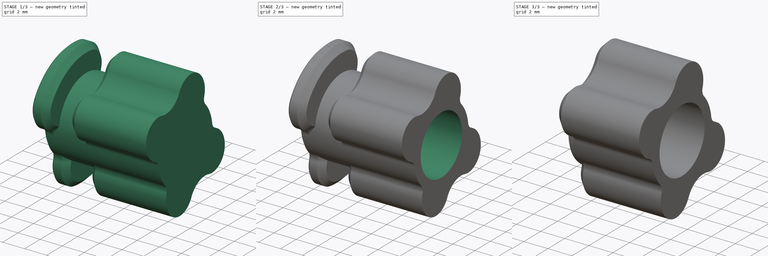
[diagram: build sequence overview — one tinted view per stage of 3, left to right]
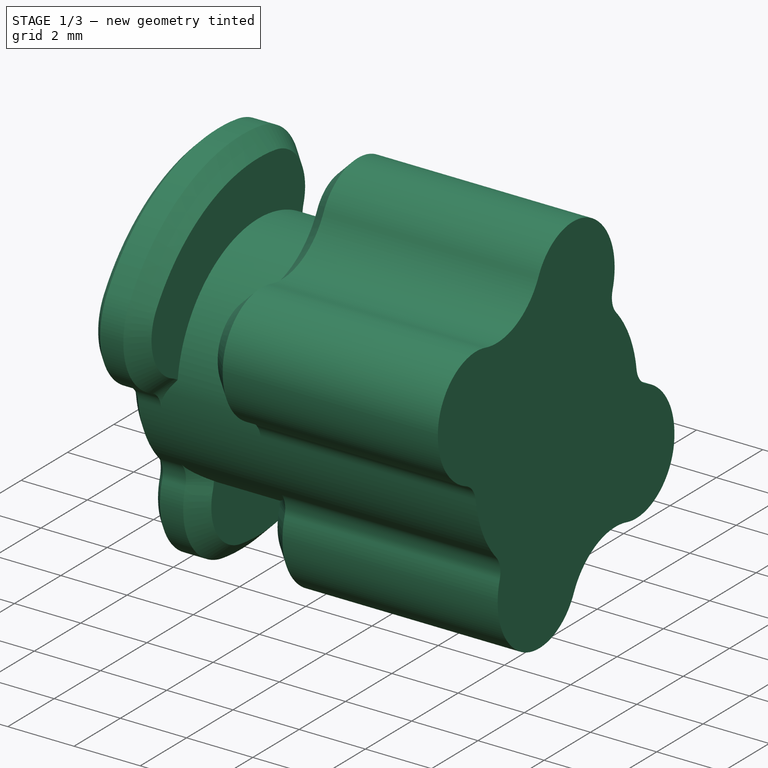
[diagram: stage 1 of 3 — iso view after this stage's code; geometry added in this stage tinted green]
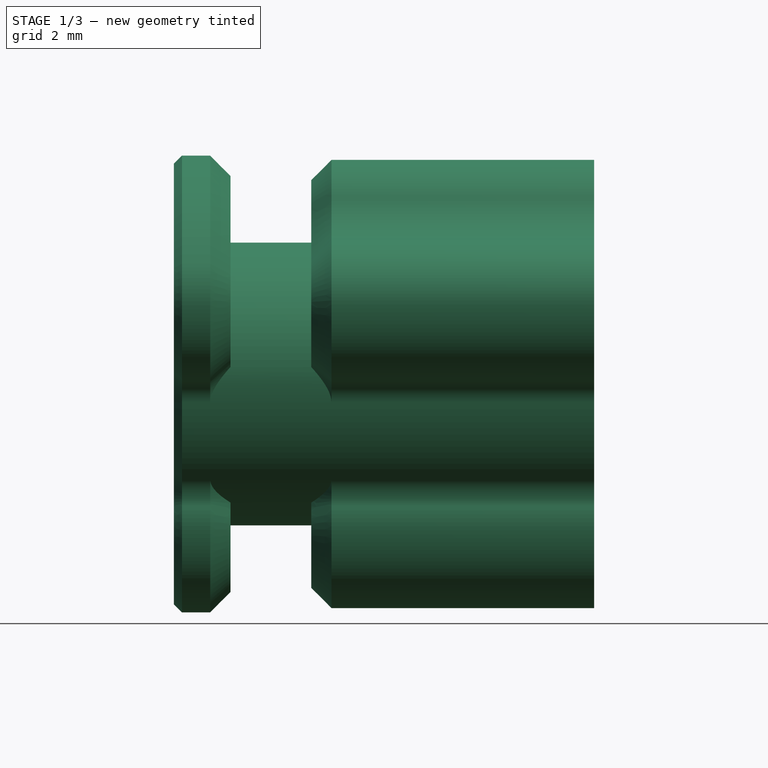
[diagram: stage 1 of 3 — front view after this stage's code; geometry added in this stage tinted green]
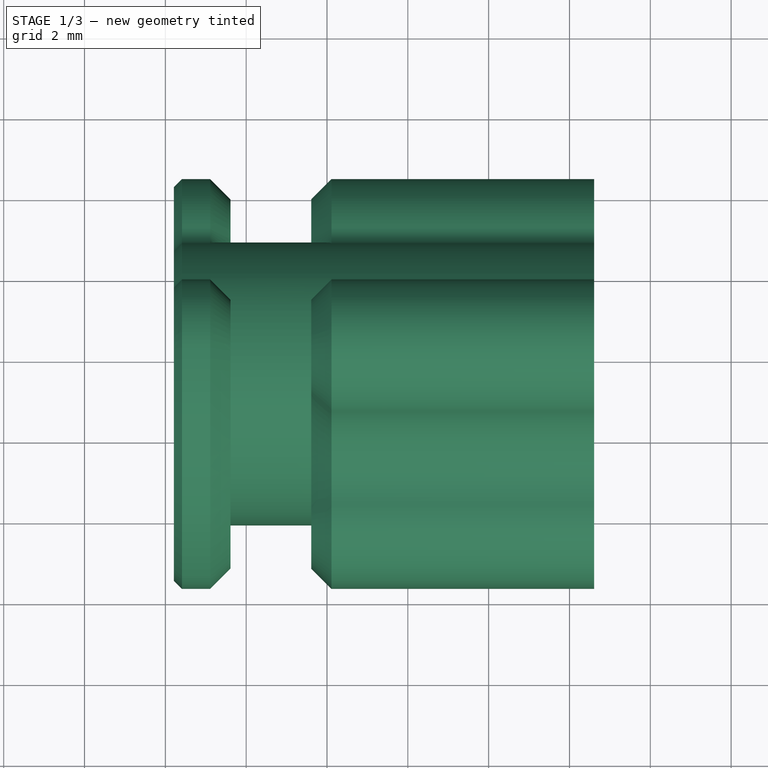
[diagram: stage 1 of 3 — top view after this stage's code; geometry added in this stage tinted green]
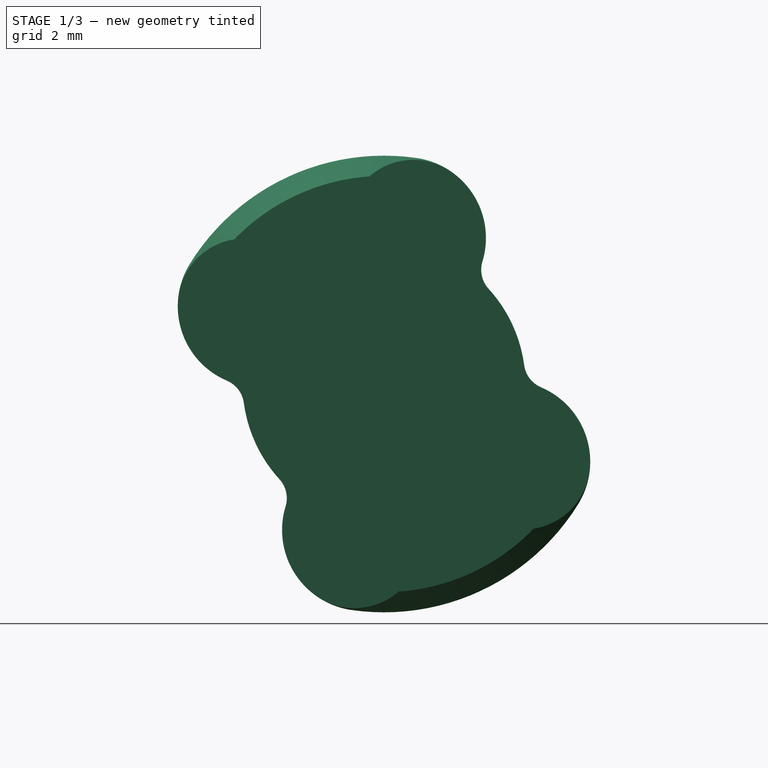
[diagram: stage 1 of 3 — right view after this stage's code; geometry added in this stage tinted green]
FCSTD DOCUMENT  (FreeCAD 0.18R)
Label: pillar-base
License: All rights reserved
LicenseURL: http://en.wikipedia.org/wiki/All_rights_reserved
objects: Part::MultiCommon×2, Sketcher::SketchObject×2, Part::Extrusion×2, Part::Feature×1, Part::Box×1, Part::Cut×1
note: 9 computed .brp shape members not serialized (recipe doc carries the construction recipe); baked Part::Feature solids carry a one-line shape summary decoded from their .brp

FEATURE [Part::Feature] Part__Feature  label="Left"
  shape: bbox 16.63 x 51.54 x 37.89 mm, 132 faces (baked)
FEATURE [Part::Box] Box  label="Cube"
  AttacherType = Attacher::AttachEngine3D
  Height = 50
  Length = 100
  Placement = pos=(-99.39,10,0) rot=(0,0,1;0rad)
  Width = 50
FEATURE [Part::MultiCommon] Common
  Shapes = -> [Part__Feature,Box]
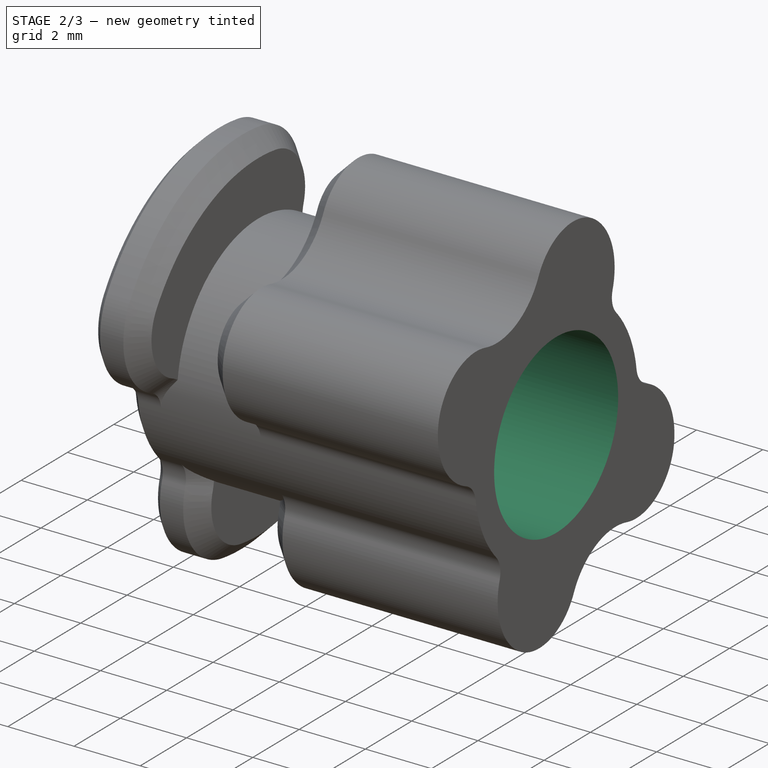
[diagram: stage 2 of 3 — iso view after this stage's code; geometry added in this stage tinted green]
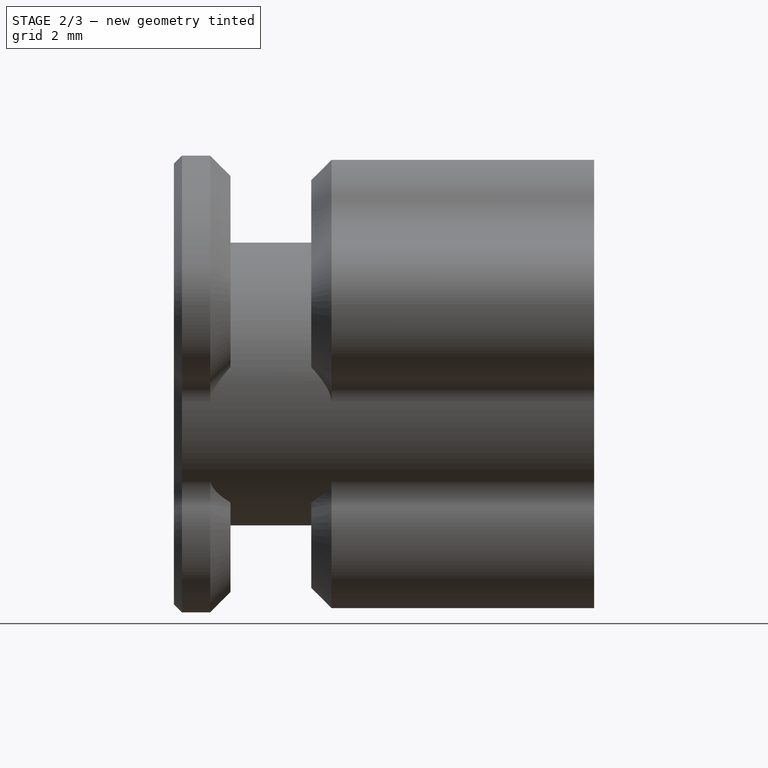
[diagram: stage 2 of 3 — front view after this stage's code; geometry added in this stage tinted green]
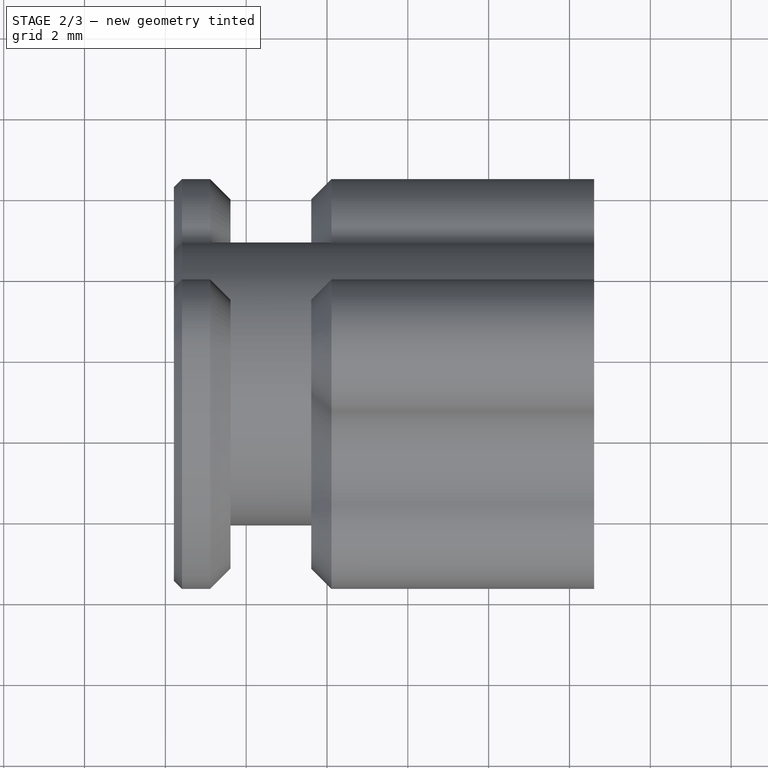
[diagram: stage 2 of 3 — top view after this stage's code; geometry added in this stage tinted green]
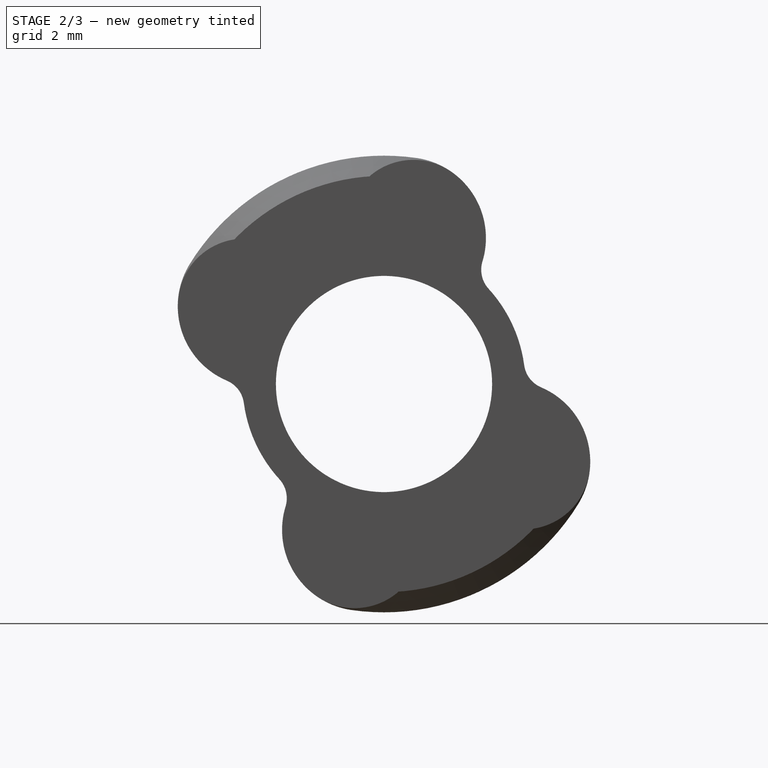
[diagram: stage 2 of 3 — right view after this stage's code; geometry added in this stage tinted green]
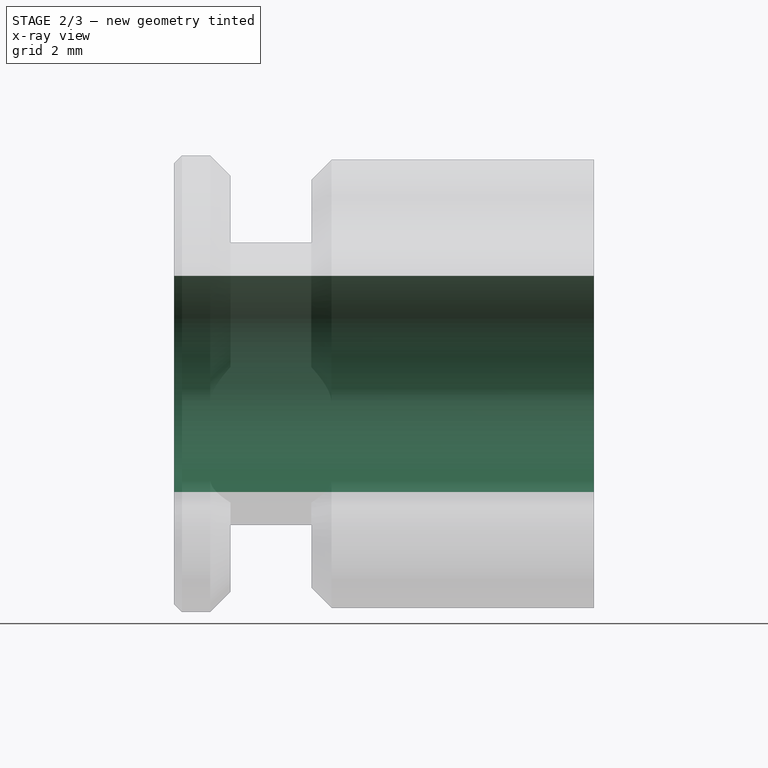
[diagram: stage 2 of 3 — x-ray composite at the front view; earlier geometry ghosted, this stage's added geometry solid]
FEATURE [Sketcher::SketchObject] Sketch
  ExternalGeometry = -> [Common]
  MapMode = 5
  Placement = pos=(0.61,0,0) rot=(0.57735,0.57735,0.57735;2.0944rad)
  Support = -> [Common]
  sketch-geometry (5):
    g0: Circle CenterX=27.3599 CenterY=15 CenterZ=0 NormalX=0 NormalY=0 NormalZ=1 AngleXU=0 Radius=2.675
    g1: LineSegment [constr] StartX=27.3599 StartY=15 StartZ=0 EndX=24.7089 EndY=14.6423 EndZ=0
    g2: LineSegment [constr] StartX=24.7089 StartY=14.6423 StartZ=0 EndX=23.8913 EndY=14.532 EndZ=0
    g3: LineSegment [constr] StartX=27.3599 StartY=15 StartZ=0 EndX=30.0109 EndY=15.3577 EndZ=0
    g4: Circle [constr] CenterX=27.3599 CenterY=15 CenterZ=0 NormalX=0 NormalY=0 NormalZ=1 AngleXU=0 Radius=1
  constraints (13):
    c: Coincident(g0,g-3)
    c: Coincident(g1,g0)
    c: PointOnObject(g1,g0)
    c: Coincident(g2,g1)
    c: Coincident(g2,g-3)
    c: Parallel(g2,g1)
    c: Coincident(g3,g0)
    c: PointOnObject(g3,g0)
    c: Parallel(g3,g1)
    c: Distance(g2) = 0.825
    c: Coincident(g4,g0)
    c: Radius(g4) = 1
    c: Radius(g0) = 2.675
FEATURE [Part::Extrusion] Extrude
  Base = -> Sketch
  Dir = (1,0,0)
  DirMode = 2
  FaceMakerClass = Part::FaceMakerBullseye
  LengthFwd = -50
  LengthRev = 0
  Solid = true
  Symmetric = false
FEATURE [Part::Cut] Cut
  Base = -> Common
  Tool = -> Extrude
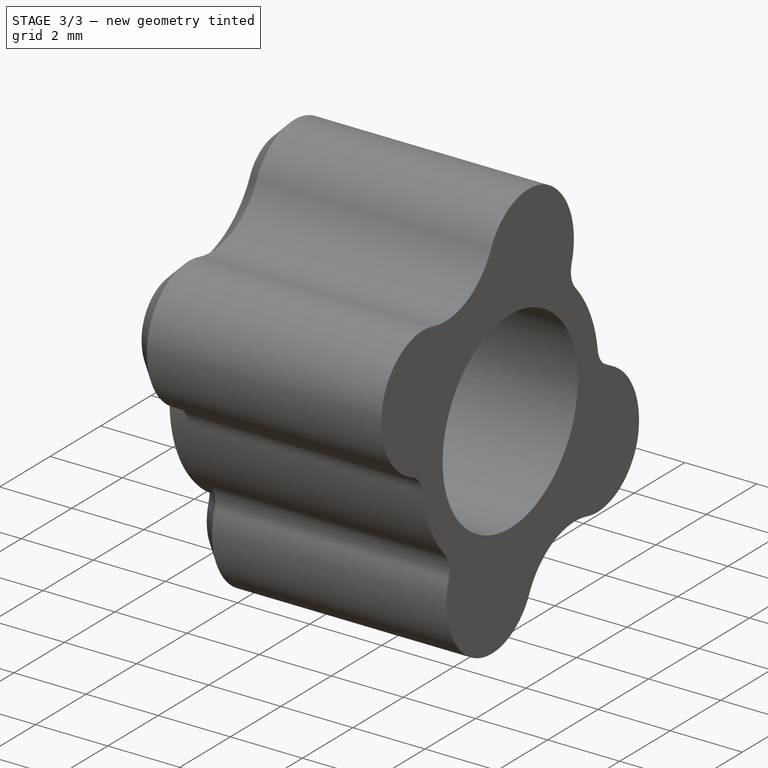
[diagram: stage 3 of 3 — iso view after this stage's code; geometry added in this stage tinted green]
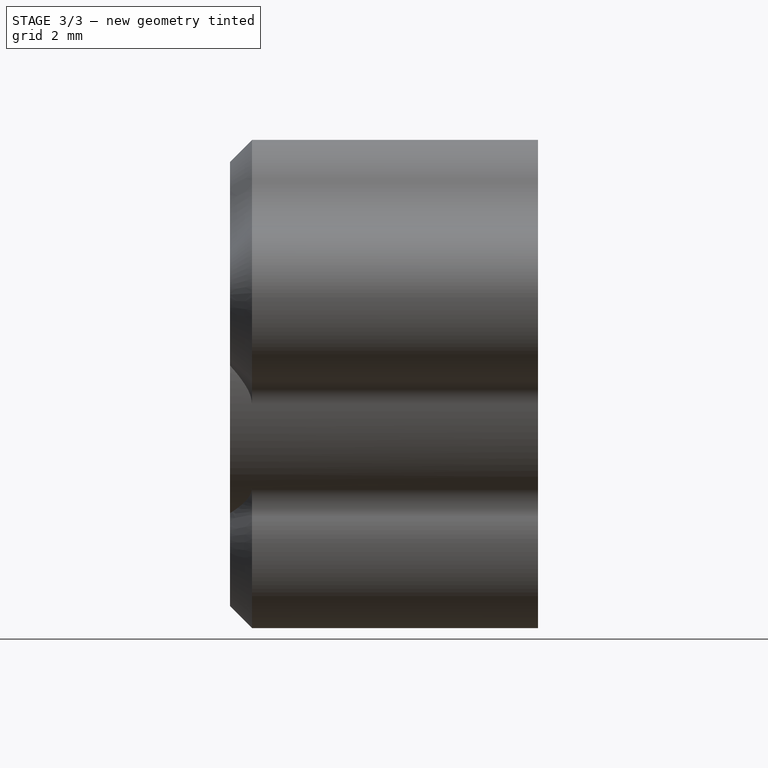
[diagram: stage 3 of 3 — front view after this stage's code; geometry added in this stage tinted green]
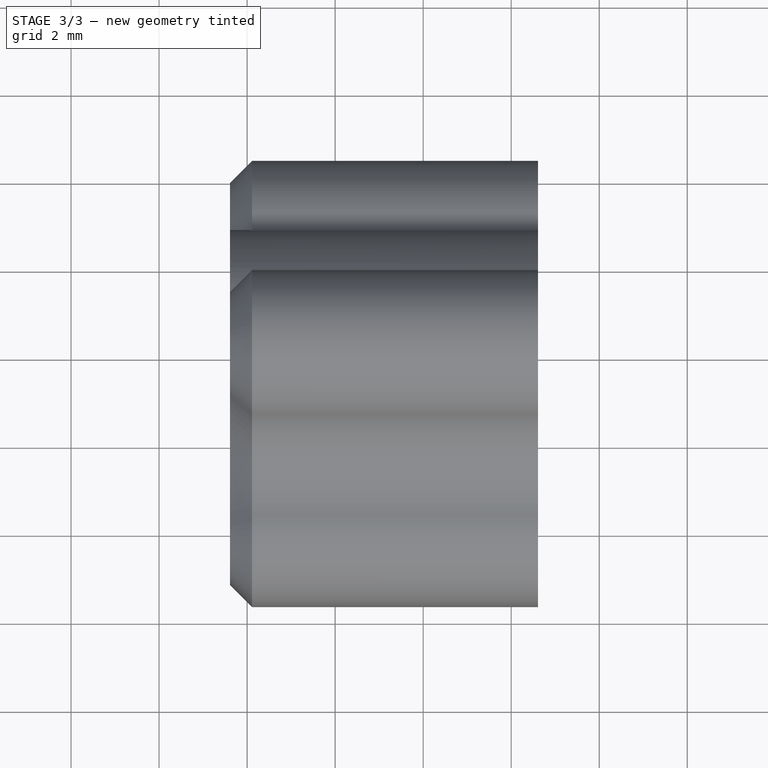
[diagram: stage 3 of 3 — top view after this stage's code; geometry added in this stage tinted green]
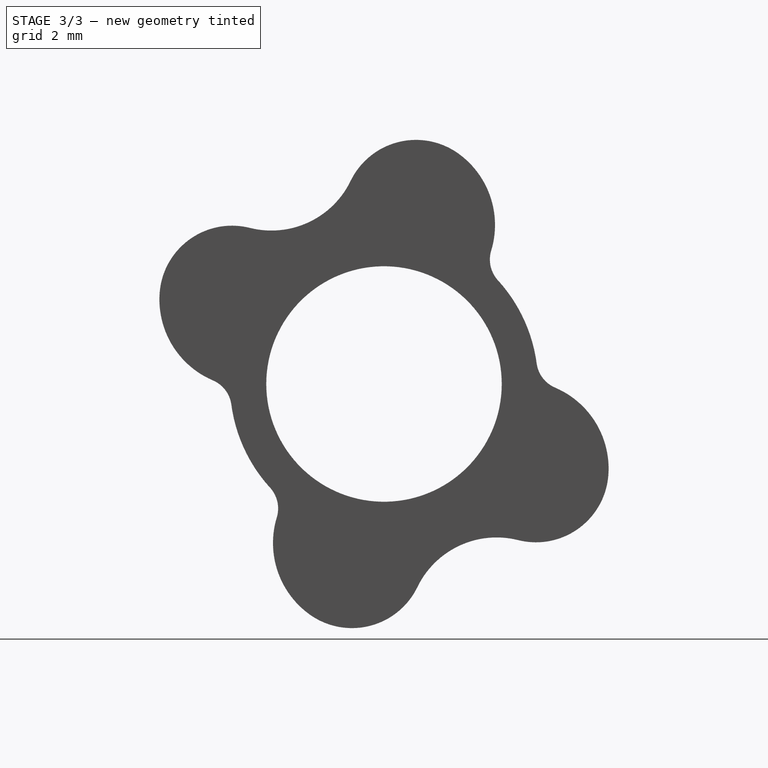
[diagram: stage 3 of 3 — right view after this stage's code; geometry added in this stage tinted green]
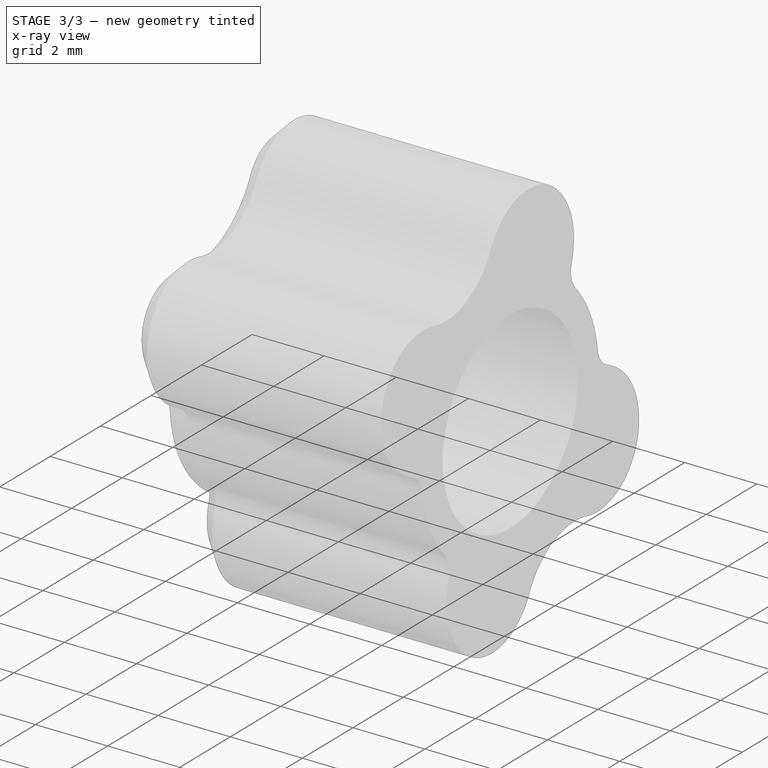
[diagram: stage 3 of 3 — x-ray composite at the iso view; earlier geometry ghosted, this stage's added geometry solid]
FEATURE [Sketcher::SketchObject] Sketch001
  ExternalGeometry = -> [Sketch]
  MapMode = 5
  Placement = pos=(0.61,0,0) rot=(0.57735,0.57735,0.57735;2.0944rad)
  Support = -> [Cut]
  sketch-geometry (1):
    g0: Circle CenterX=27.3599 CenterY=15 CenterZ=0 NormalX=0 NormalY=0 NormalZ=1 AngleXU=0 Radius=15
  constraints (2):
    c: Coincident(g0,g-3)
    c: Radius(g0) = 15
FEATURE [Part::Extrusion] Extrude001
  Base = -> Sketch001
  Dir = (1,0,0)
  DirMode = 2
  FaceMakerClass = Part::FaceMakerBullseye
  LengthFwd = -7
  LengthRev = 0
  Solid = true
  Symmetric = false
FEATURE [Part::MultiCommon] Common001
  Shapes = -> [Extrude001,Cut]
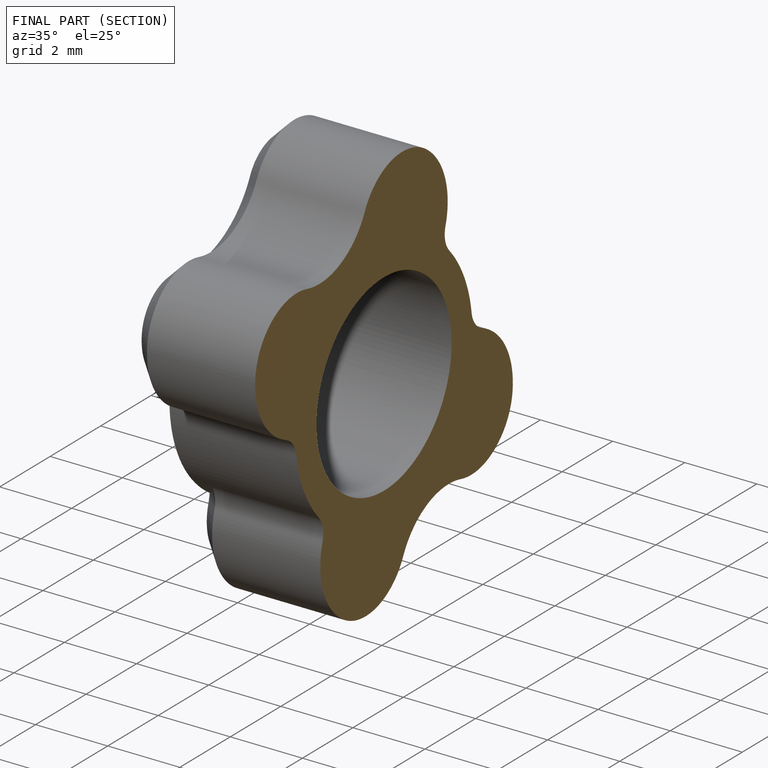
[diagram: finished part — half-section view (interior)]
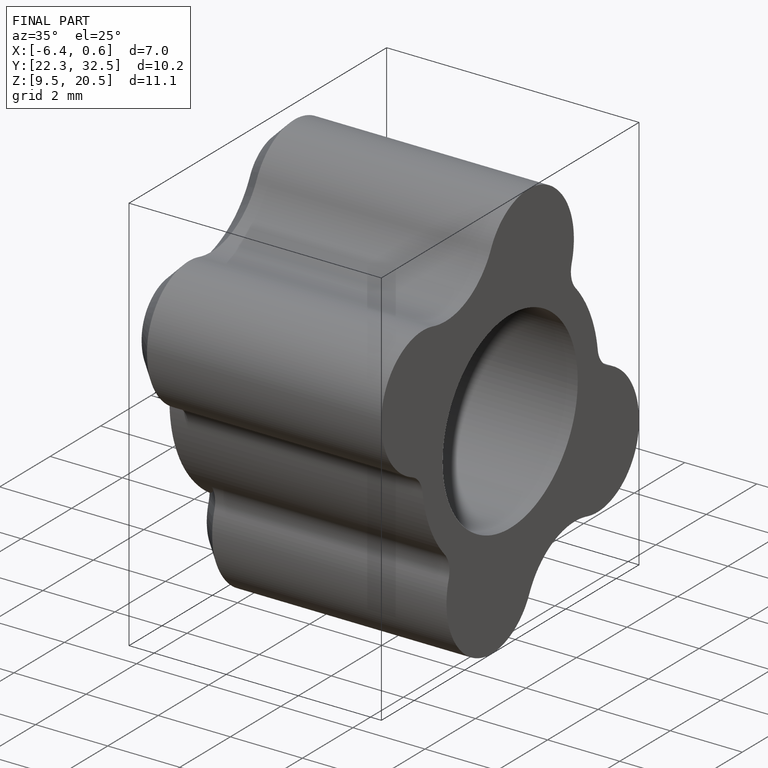
[diagram: finished part — iso view with bounding-box wireframe]
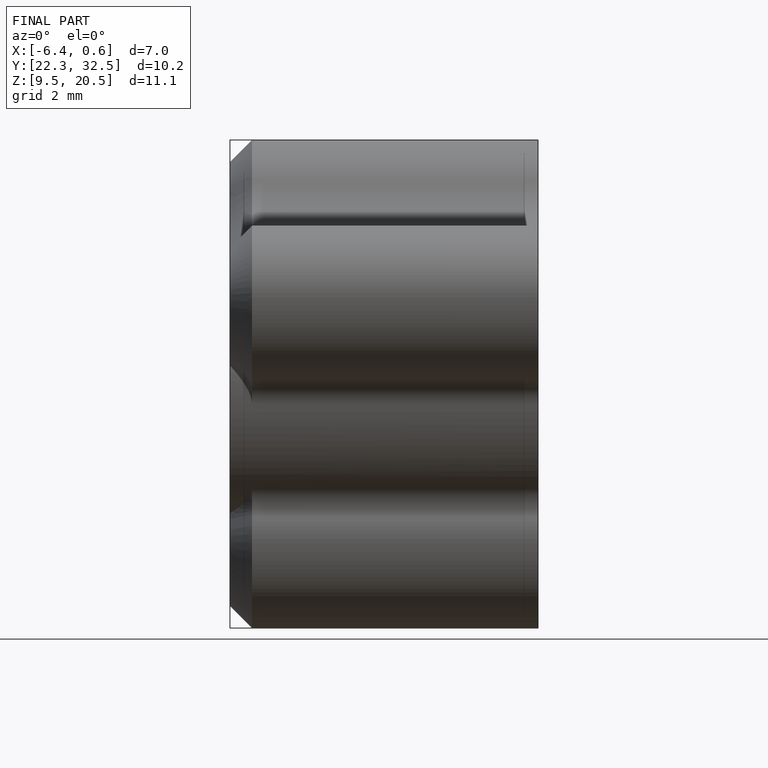
[diagram: finished part — front view with bounding-box wireframe]
